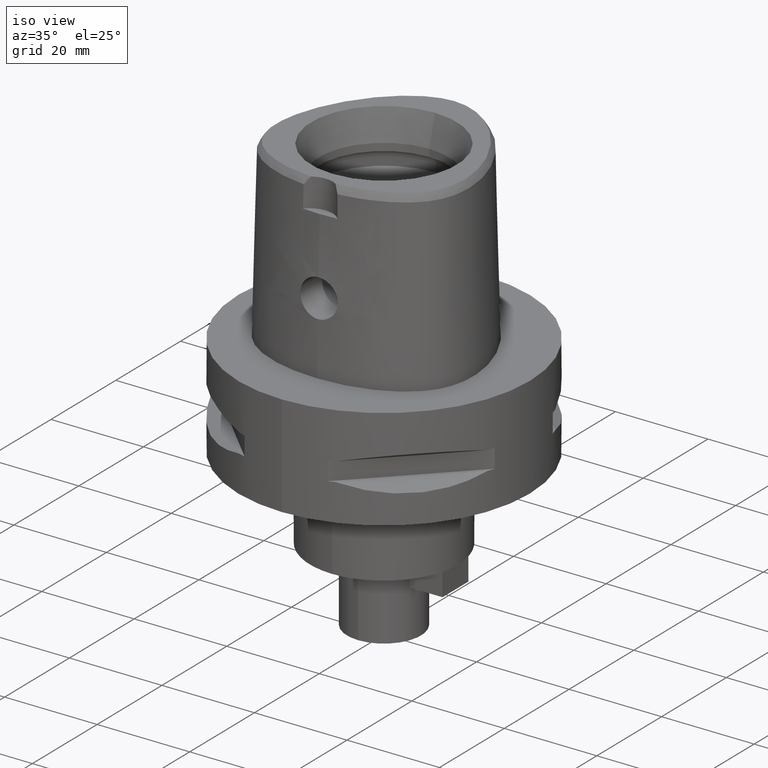
[diagram: clean part render]
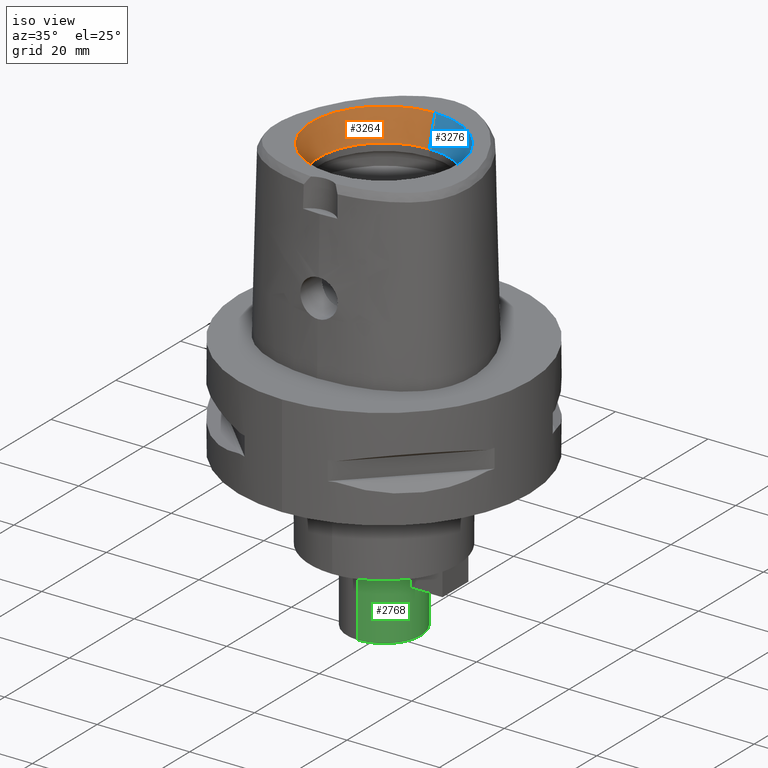
[diagram: same view with three faces highlighted in distinct colors, each labeled with its STEP entity id]
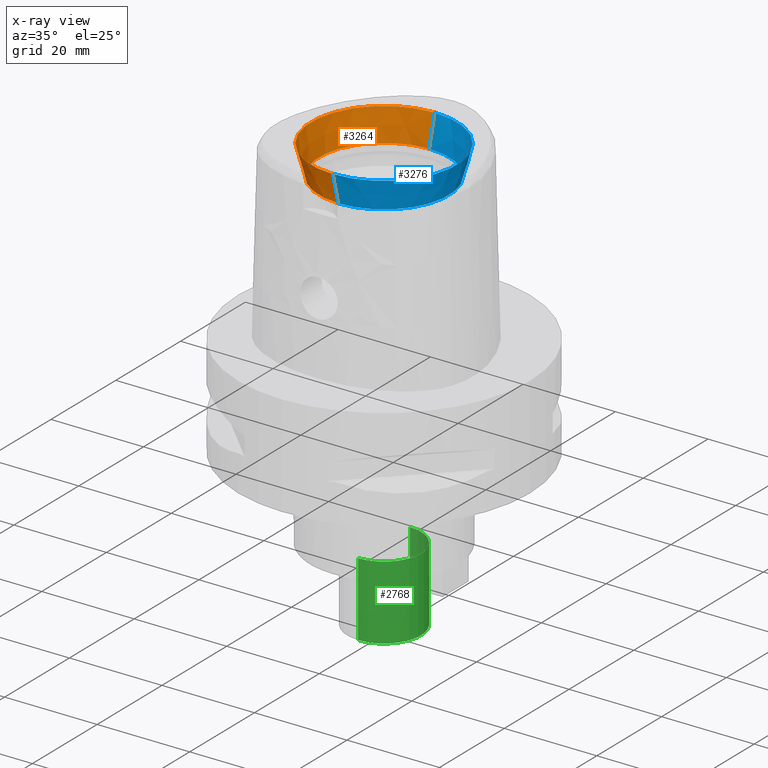
[diagram: x-ray of the same camera — body ghosted, the three highlighted faces saturated]
A machine part, iso view with three faces highlighted in distinct colors.
The next image is the same camera in x-ray (body ghosted, the three faces saturated) — at least one of them is partly hidden behind the body in this view.
Their STEP definitions:

[orange] entity #3264 — the highlighted conical surface has half-angle 15 deg.
#126=CARTESIAN_POINT('',(0.E0,0.E0,3.8E1));
#127=DIRECTION('',(0.E0,0.E0,1.E0));
#128=DIRECTION('',(0.E0,1.E0,0.E0));
#129=AXIS2_PLACEMENT_3D('',#126,#127,#128);
#1174=CARTESIAN_POINT('',(0.E0,0.E0,3.16E1));
#1175=DIRECTION('',(0.E0,0.E0,1.E0));
#1176=DIRECTION('',(0.E0,1.E0,0.E0));
#1177=AXIS2_PLACEMENT_3D('',#1174,#1175,#1176);
#1182=DIRECTION('',(0.E0,-2.588190451026E-1,9.659258262891E-1));
#1183=VECTOR('',#1182,6.625767554625E0);
#1184=CARTESIAN_POINT('',(0.E0,-1.4E1,3.16E1));
#1185=LINE('',#1184,#1183);
#1197=DIRECTION('',(0.E0,2.588190451026E-1,9.659258262891E-1));
#1198=VECTOR('',#1197,6.625767554625E0);
#1199=CARTESIAN_POINT('',(0.E0,1.4E1,3.16E1));
#1200=LINE('',#1199,#1198);
#1651=CARTESIAN_POINT('',(0.E0,1.571487483156E1,3.8E1));
#1652=CARTESIAN_POINT('',(0.E0,-1.571487483156E1,3.8E1));
#1653=VERTEX_POINT('',#1651);
#1654=VERTEX_POINT('',#1652);
#1819=CARTESIAN_POINT('',(0.E0,-1.4E1,3.16E1));
#1820=VERTEX_POINT('',#1819);
#1821=CARTESIAN_POINT('',(0.E0,1.4E1,3.16E1));
#1822=VERTEX_POINT('',#1821);
#3251=CARTESIAN_POINT('',(0.E0,0.E0,3.48E1));
#3252=DIRECTION('',(0.E0,0.E0,1.E0));
#3253=DIRECTION('',(0.E0,1.E0,0.E0));
#3254=AXIS2_PLACEMENT_3D('',#3251,#3252,#3253);
#3255=CONICAL_SURFACE('',#3254,1.485743741578E1,1.5E1);
#3256=ORIENTED_EDGE('',*,*,#1854,.F.);
#3258=ORIENTED_EDGE('',*,*,#3257,.F.);
#3259=ORIENTED_EDGE('',*,*,#3244,.T.);
#3261=ORIENTED_EDGE('',*,*,#3260,.T.);
#3262=EDGE_LOOP('',(#3256,#3258,#3259,#3261));
#3263=FACE_OUTER_BOUND('',#3262,.F.);
#130=CIRCLE('',#129,1.571487483156E1);
#1178=CIRCLE('',#1177,1.4E1);
#1854=EDGE_CURVE('',#1653,#1654,#130,.T.);
#3244=EDGE_CURVE('',#1822,#1820,#1178,.T.);
#3257=EDGE_CURVE('',#1822,#1653,#1200,.T.);
#3260=EDGE_CURVE('',#1820,#1654,#1185,.T.);
#3264=ADVANCED_FACE('',(#3263),#3255,.F.);

[blue] entity #3276 — the highlighted conical surface has half-angle 15 deg.
#134=CARTESIAN_POINT('',(0.E0,0.E0,3.8E1));
#135=DIRECTION('',(0.E0,0.E0,1.E0));
#136=DIRECTION('',(0.E0,-1.E0,0.E0));
#137=AXIS2_PLACEMENT_3D('',#134,#135,#136);
#1182=DIRECTION('',(0.E0,-2.588190451026E-1,9.659258262891E-1));
#1183=VECTOR('',#1182,6.625767554625E0);
#1184=CARTESIAN_POINT('',(0.E0,-1.4E1,3.16E1));
#1185=LINE('',#1184,#1183);
#1189=CARTESIAN_POINT('',(0.E0,0.E0,3.16E1));
#1190=DIRECTION('',(0.E0,0.E0,1.E0));
#1191=DIRECTION('',(0.E0,-1.E0,0.E0));
#1192=AXIS2_PLACEMENT_3D('',#1189,#1190,#1191);
#1197=DIRECTION('',(0.E0,2.588190451026E-1,9.659258262891E-1));
#1198=VECTOR('',#1197,6.625767554625E0);
#1199=CARTESIAN_POINT('',(0.E0,1.4E1,3.16E1));
#1200=LINE('',#1199,#1198);
#1651=CARTESIAN_POINT('',(0.E0,1.571487483156E1,3.8E1));
#1652=CARTESIAN_POINT('',(0.E0,-1.571487483156E1,3.8E1));
#1653=VERTEX_POINT('',#1651);
#1654=VERTEX_POINT('',#1652);
#1819=CARTESIAN_POINT('',(0.E0,-1.4E1,3.16E1));
#1820=VERTEX_POINT('',#1819);
#1821=CARTESIAN_POINT('',(0.E0,1.4E1,3.16E1));
#1822=VERTEX_POINT('',#1821);
#3265=CARTESIAN_POINT('',(0.E0,0.E0,3.48E1));
#3266=DIRECTION('',(0.E0,0.E0,1.E0));
#3267=DIRECTION('',(0.E0,1.E0,0.E0));
#3268=AXIS2_PLACEMENT_3D('',#3265,#3266,#3267);
#3269=CONICAL_SURFACE('',#3268,1.485743741578E1,1.5E1);
#3270=ORIENTED_EDGE('',*,*,#1856,.F.);
#3271=ORIENTED_EDGE('',*,*,#3260,.F.);
#3272=ORIENTED_EDGE('',*,*,#3233,.T.);
#3273=ORIENTED_EDGE('',*,*,#3257,.T.);
#3274=EDGE_LOOP('',(#3270,#3271,#3272,#3273));
#3275=FACE_OUTER_BOUND('',#3274,.F.);
#138=CIRCLE('',#137,1.571487483156E1);
#1193=CIRCLE('',#1192,1.4E1);
#1856=EDGE_CURVE('',#1654,#1653,#138,.T.);
#3233=EDGE_CURVE('',#1820,#1822,#1193,.T.);
#3257=EDGE_CURVE('',#1822,#1653,#1200,.T.);
#3260=EDGE_CURVE('',#1820,#1654,#1185,.T.);
#3276=ADVANCED_FACE('',(#3275),#3269,.F.);

[green] entity #2768 — the highlighted cylindrical surface (partial cylindrical patch) has radius 8 mm, axis along (0, 0, -1).
#623=CARTESIAN_POINT('',(0.E0,1.258936909523E-14,-4.E1));
#624=DIRECTION('',(0.E0,0.E0,-1.E0));
#625=DIRECTION('',(0.E0,1.E0,0.E0));
#626=AXIS2_PLACEMENT_3D('',#623,#624,#625);
#659=DIRECTION('',(0.E0,0.E0,-1.E0));
#660=VECTOR('',#659,1.6E1);
#661=CARTESIAN_POINT('',(0.E0,-8.E0,-4.E1));
#662=LINE('',#661,#660);
#666=DIRECTION('',(0.E0,0.E0,-1.E0));
#667=VECTOR('',#666,1.6E1);
#668=CARTESIAN_POINT('',(0.E0,8.E0,-4.E1));
#669=LINE('',#668,#667);
#673=CARTESIAN_POINT('',(0.E0,1.258936909523E-14,-5.6E1));
#674=DIRECTION('',(0.E0,0.E0,1.E0));
#675=DIRECTION('',(0.E0,-1.E0,0.E0));
#676=AXIS2_PLACEMENT_3D('',#673,#674,#675);
#1742=CARTESIAN_POINT('',(0.E0,-8.E0,-4.E1));
#1743=CARTESIAN_POINT('',(0.E0,8.E0,-4.E1));
#1744=VERTEX_POINT('',#1742);
#1745=VERTEX_POINT('',#1743);
#1762=CARTESIAN_POINT('',(0.E0,8.E0,-5.6E1));
#1763=VERTEX_POINT('',#1762);
#1764=CARTESIAN_POINT('',(0.E0,-8.E0,-5.6E1));
#1765=VERTEX_POINT('',#1764);
#2756=CARTESIAN_POINT('',(0.E0,1.258936909523E-14,2.8E0));
#2757=DIRECTION('',(0.E0,0.E0,-1.E0));
#2758=DIRECTION('',(0.E0,-1.E0,0.E0));
#2759=AXIS2_PLACEMENT_3D('',#2756,#2757,#2758);
#2760=CYLINDRICAL_SURFACE('',#2759,8.E0);
#2761=ORIENTED_EDGE('',*,*,#2746,.T.);
#2763=ORIENTED_EDGE('',*,*,#2762,.F.);
#2764=ORIENTED_EDGE('',*,*,#2749,.F.);
#2765=ORIENTED_EDGE('',*,*,#2716,.F.);
#2766=EDGE_LOOP('',(#2761,#2763,#2764,#2765));
#2767=FACE_OUTER_BOUND('',#2766,.F.);
#627=CIRCLE('',#626,8.E0);
#677=CIRCLE('',#676,8.E0);
#2716=EDGE_CURVE('',#1745,#1744,#627,.T.);
#2746=EDGE_CURVE('',#1745,#1763,#669,.T.);
#2749=EDGE_CURVE('',#1744,#1765,#662,.T.);
#2762=EDGE_CURVE('',#1765,#1763,#677,.T.);
#2768=ADVANCED_FACE('',(#2767),#2760,.T.);